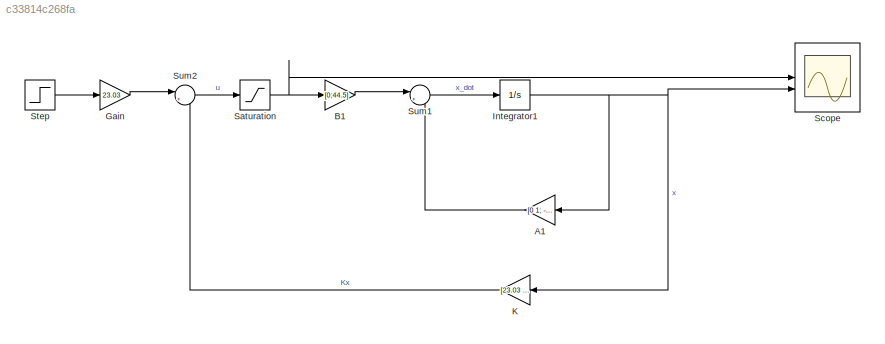
MODEL slx_c33814c268fa
KIND model
CONFIG AbsTol = auto
CONFIG EnableMultiTasking = off
CONFIG FixedStep = auto
CONFIG MaxStep = auto
CONFIG MinStep = auto
CONFIG RelTol = 1e-3
CONFIG SampleTimeConstraint = Unconstrained
CONFIG SolverName = VariableStepAuto
CONFIG StartTime = 0.0
CONFIG StopTime = 10.0
BLOCK [Gain] A1
  Gain = [0 1; -0.00012 -65.45]
  Multiplication = Matrix(K*u)
  NameLocation = top
BLOCK [Gain] B1
  Gain = [0;44.5]
  Multiplication = Matrix(K*u)
BLOCK [Gain] Gain
  Gain = 23.03
BLOCK [Integrator] Integrator1
BLOCK [Gain] K
  Gain = [23.03 0.35]
  Multiplication = Matrix(K*u)
  NameLocation = top
BLOCK [Saturate] Saturation
  LowerLimit = -300
  UpperLimit = 300
BLOCK [Scope] Scope
  Floating = off
  NumInputPorts = 2
  ScopeSpecificationString = Simulink.scopes.TimeScopeBlockCfg('CurrentConfiguration', extmgr.ConfigurationSet(extmgr.Configuration('Core','General UI',true),extmgr.Configuration('Core','Source UI',true),extmgr.Configuration('Sources','WiredSimulink',true,'DataLogging',true,'DataLoggingVariableName','x2','DataLoggingSaveFormat','StructureWithTime'),extmgr.Configuration('Visuals','Time Domain',true,'SerializedDisplays',{struct...<+1564ch>
BLOCK [Step] Step
  After = 400
  SampleTime = 0
  Time = 0.945
BLOCK [Sum] Sum1
  Inputs = |++
BLOCK [Sum] Sum2
  Inputs = |+-
LINE A1:1 -> Sum1:2
LINE B1:1 -> Sum1:1
LINE Gain:1 -> Sum2:1
NET Integrator1:1 -> A1:1, K:1, Scope:2
LINE K:1 -> Sum2:2
NET Saturation:1 -> B1:1, Scope:1
LINE Step:1 -> Gain:1
LINE Sum1:1 -> Integrator1:1
LINE Sum2:1 -> Saturation:1
note: NET lines group one-source signal fan-out (src -> all destinations, sorted); 1:1 wires keep LINE
